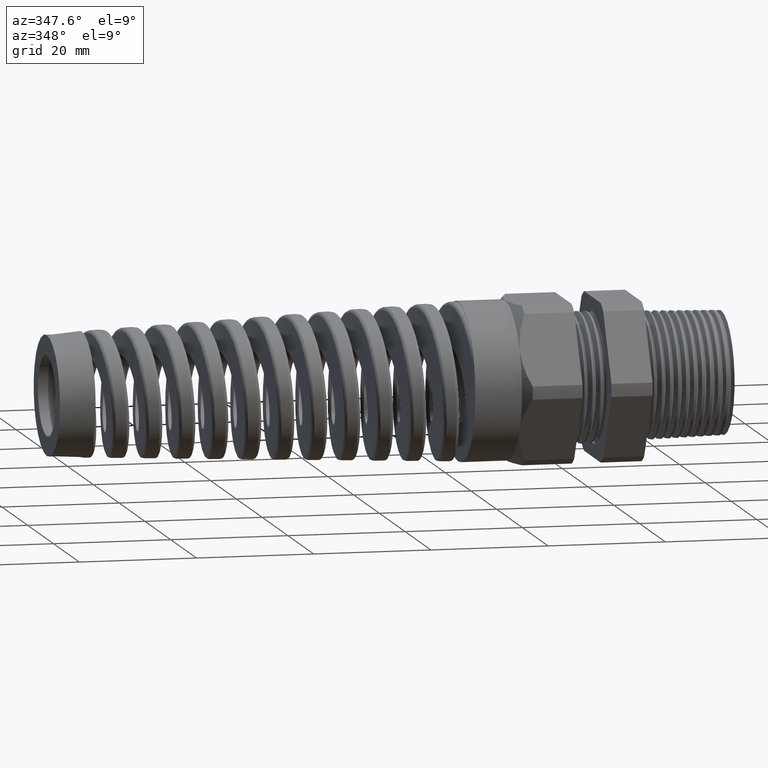
[diagram: clean part render]
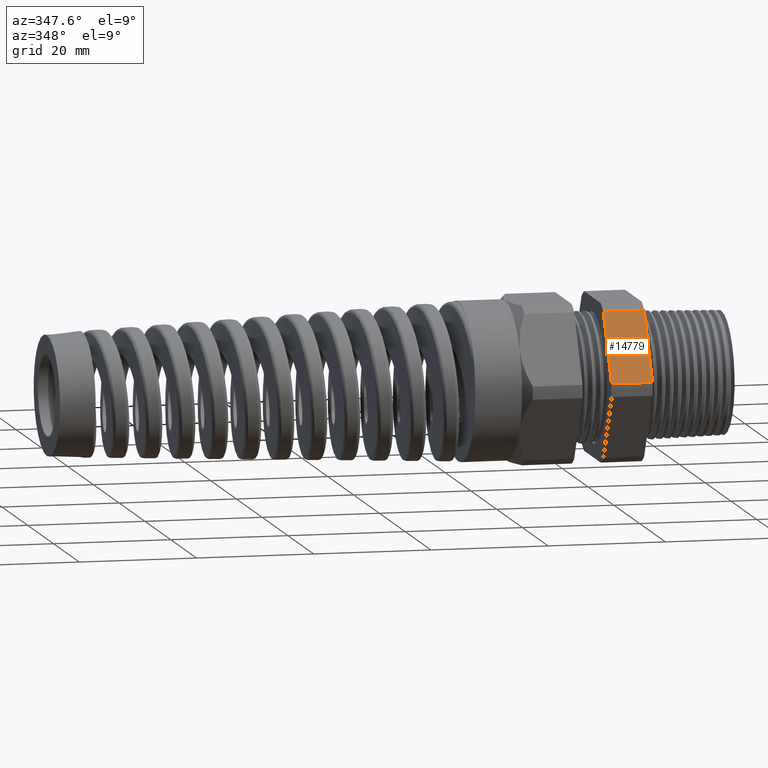
[diagram: same view with one face highlighted and labeled with its STEP entity id]
A machine part, auxiliary view. The second image highlights one B-rep face of the part: STEP entity #14779.
In plain terms, the highlighted planar face has unit normal (0, -0.866, 0.5).
Its self-contained STEP definition (entity closure, byte-faithful):
#8931 = CARTESIAN_POINT ( 'NONE',  ( -0.3100000000000000000, -0.5866618723924792400, 0.04387183015273651100 ) ) ;
#8938 = DIRECTION ( 'NONE',  ( 0.0000000000000000000, -0.4999999999999994400, -0.8660254037844389300 ) ) ;
#8939 = VECTOR ( 'NONE', #8938, 39.37007874015748100 ) ;
#8940 = CARTESIAN_POINT ( 'NONE',  ( -0.3100000000000000000, -0.1939934640057531200, 0.7239934640057518200 ) ) ;
#8941 = LINE ( 'NONE', #8940, #8939 ) ;
#8989 = CARTESIAN_POINT ( 'NONE',  ( -0.3100000000000000000, -0.3313250556190262000, 0.4861281698472629300 ) ) ;
#10807 = FACE_OUTER_BOUND ( 'NONE', #14780, .T. ) ;
#10808 = DIRECTION ( 'NONE',  ( -1.000000000000000000, 0.0000000000000000000, 0.0000000000000000000 ) ) ;
#10810 = VECTOR ( 'NONE', #10808, 39.37007874015748100 ) ;
#10811 = CARTESIAN_POINT ( 'NONE',  ( 0.2800000000000000300, -0.3313250556190262000, 0.4861281698472629300 ) ) ;
#10817 = LINE ( 'NONE', #10811, #10810 ) ;
#10870 = DIRECTION ( 'NONE',  ( -1.000000000000000000, 0.0000000000000000000, 0.0000000000000000000 ) ) ;
#10871 = VECTOR ( 'NONE', #10870, 39.37007874015748100 ) ;
#10872 = CARTESIAN_POINT ( 'NONE',  ( 0.2800000000000000300, -0.5866618723924792400, 0.04387183015273651100 ) ) ;
#10873 = LINE ( 'NONE', #10872, #10871 ) ;
#10874 = DIRECTION ( 'NONE',  ( 0.0000000000000000000, -0.4999999999999994400, -0.8660254037844390400 ) ) ;
#10875 = DIRECTION ( 'NONE',  ( 0.0000000000000000000, -0.8660254037844390400, 0.4999999999999994400 ) ) ;
#10876 = CARTESIAN_POINT ( 'NONE',  ( 0.2800000000000000300, -0.5866618723924791300, 0.04387183015273675400 ) ) ;
#10877 = AXIS2_PLACEMENT_3D ( 'NONE', #10876, #10875, #10874 ) ;
#10878 = PLANE ( 'NONE',  #10877 ) ;
#10990 = CARTESIAN_POINT ( 'NONE',  ( -0.5855905511811022600, -0.3313250556190262000, 0.4861281698472629300 ) ) ;
#10997 = DIRECTION ( 'NONE',  ( 0.0000000000000000000, 0.4999999999999994400, 0.8660254037844389300 ) ) ;
#10998 = VECTOR ( 'NONE', #10997, 39.37007874015748100 ) ;
#10999 = CARTESIAN_POINT ( 'NONE',  ( -0.5855905511811022600, -0.1939934640057531200, 0.7239934640057518200 ) ) ;
#11005 = LINE ( 'NONE', #10999, #10998 ) ;
#11006 = CARTESIAN_POINT ( 'NONE',  ( -0.5855905511811022600, -0.5866618723924792400, 0.04387183015273651100 ) ) ;
#13885 = EDGE_CURVE ( 'NONE', #13892, #13888, #8941, .T. ) ;
#13888 = VERTEX_POINT ( 'NONE', #8931 ) ;
#13892 = VERTEX_POINT ( 'NONE', #8989 ) ;
#14777 = EDGE_CURVE ( 'NONE', #13892, #18876, #10817, .T. ) ;
#14779 = ADVANCED_FACE ( 'NONE', ( #10807 ), #10878, .T. ) ;
#14780 = EDGE_LOOP ( 'NONE', ( #14781, #14782, #14783, #14811 ) ) ;
#14781 = ORIENTED_EDGE ( 'NONE', *, *, #14777, .T. ) ;
#14782 = ORIENTED_EDGE ( 'NONE', *, *, #18871, .F. ) ;
#14783 = ORIENTED_EDGE ( 'NONE', *, *, #14784, .F. ) ;
#14784 = EDGE_CURVE ( 'NONE', #13888, #18868, #10873, .T. ) ;
#14811 = ORIENTED_EDGE ( 'NONE', *, *, #13885, .F. ) ;
#18868 = VERTEX_POINT ( 'NONE', #11006 ) ;
#18871 = EDGE_CURVE ( 'NONE', #18868, #18876, #11005, .T. ) ;
#18876 = VERTEX_POINT ( 'NONE', #10990 ) ;